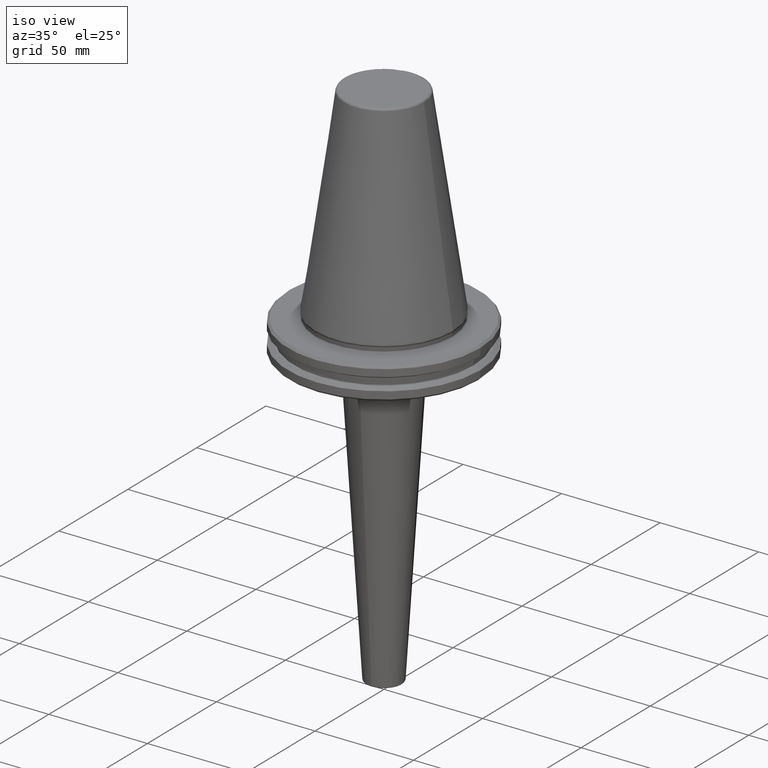
[diagram: clean part render]
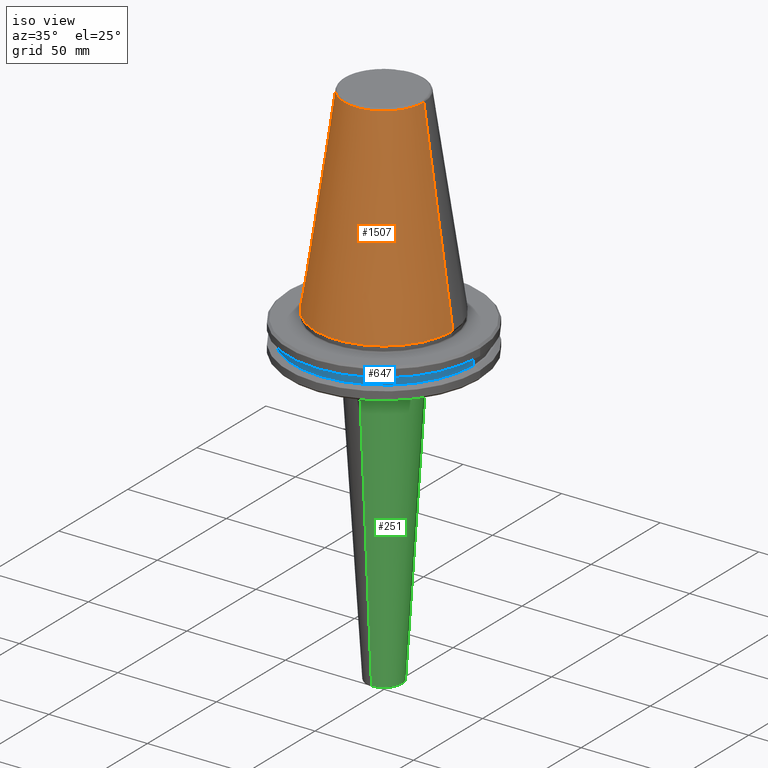
[diagram: same view with three faces highlighted in distinct colors, each labeled with its STEP entity id]
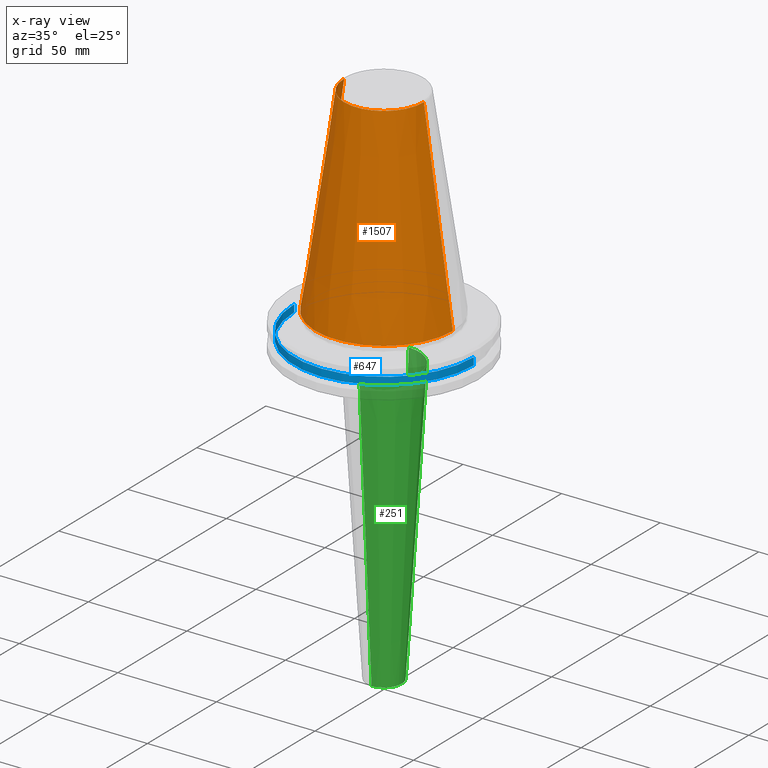
[diagram: x-ray of the same camera — body ghosted, the three highlighted faces saturated]
A machine part, iso view with three faces highlighted in distinct colors.
The next image is the same camera in x-ray (body ghosted, the three faces saturated) — at least one of them is partly hidden behind the body in this view.
Their STEP definitions:

[orange] entity #1507 — the highlighted conical surface has half-angle 8.297 deg.
#12 = AXIS2_PLACEMENT_3D ( 'NONE', #931, #621, #210 ) ;
#136 = AXIS2_PLACEMENT_3D ( 'NONE', #587, #584, #579 ) ;
#143 = VERTEX_POINT ( 'NONE', #955 ) ;
#148 = AXIS2_PLACEMENT_3D ( 'NONE', #350, #339, #209 ) ;
#166 = VERTEX_POINT ( 'NONE', #1245 ) ;
#209 = DIRECTION ( 'NONE',  ( -1.000000000000000000, 0.0000000000000000000, 0.0000000000000000000 ) ) ;
#210 = DIRECTION ( 'NONE',  ( -1.000000000000000000, 0.0000000000000000000, 0.0000000000000000000 ) ) ;
#323 = CIRCLE ( 'NONE', #148, 34.92499999999999700 ) ;
#339 = DIRECTION ( 'NONE',  ( -0.0000000000000000000, -0.0000000000000000000, 1.000000000000000000 ) ) ;
#350 = CARTESIAN_POINT ( 'NONE',  ( 0.0000000000000000000, 0.0000000000000000000, 0.0000000000000000000 ) ) ;
#370 = VERTEX_POINT ( 'NONE', #1297 ) ;
#391 = VERTEX_POINT ( 'NONE', #1547 ) ;
#488 = EDGE_CURVE ( 'NONE', #143, #391, #1359, .T. ) ;
#531 = EDGE_CURVE ( 'NONE', #166, #370, #1169, .T. ) ;
#579 = DIRECTION ( 'NONE',  ( -1.000000000000000000, 0.0000000000000000000, 0.0000000000000000000 ) ) ;
#584 = DIRECTION ( 'NONE',  ( 0.0000000000000000000, 0.0000000000000000000, -1.000000000000000000 ) ) ;
#587 = CARTESIAN_POINT ( 'NONE',  ( 0.0000000000000000000, 0.0000000000000000000, 100.8943082272673000 ) ) ;
#621 = DIRECTION ( 'NONE',  ( 0.0000000000000000000, 0.0000000000000000000, -1.000000000000000000 ) ) ;
#760 = FACE_OUTER_BOUND ( 'NONE', #920, .T. ) ;
#787 = ORIENTED_EDGE ( 'NONE', *, *, #531, .T. ) ;
#920 = EDGE_LOOP ( 'NONE', ( #1276, #1016, #787, #990 ) ) ;
#931 = CARTESIAN_POINT ( 'NONE',  ( 0.0000000000000000000, 0.0000000000000000000, -1.387778780781445700E-014 ) ) ;
#955 = CARTESIAN_POINT ( 'NONE',  ( 20.21110778703758000, 3.376112895941951000E-015, 100.8943082272673000 ) ) ;
#990 = ORIENTED_EDGE ( 'NONE', *, *, #1429, .T. ) ;
#1016 = ORIENTED_EDGE ( 'NONE', *, *, #1058, .T. ) ;
#1058 = EDGE_CURVE ( 'NONE', #143, #166, #1110, .T. ) ;
#1110 = CIRCLE ( 'NONE', #136, 20.21110778703758000 ) ;
#1169 = LINE ( 'NONE', #1308, #1307 ) ;
#1230 = DIRECTION ( 'NONE',  ( 0.1443082272673069400, 1.767266086135362400E-017, -0.9895327864921743500 ) ) ;
#1240 = DIRECTION ( 'NONE',  ( -0.1443082272673069400, 0.0000000000000000000, -0.9895327864921743500 ) ) ;
#1245 = CARTESIAN_POINT ( 'NONE',  ( -20.21110778703758000, 0.0000000000000000000, 100.8943082272673000 ) ) ;
#1268 = VECTOR ( 'NONE', #1230, 1000.000000000000000 ) ;
#1276 = ORIENTED_EDGE ( 'NONE', *, *, #488, .F. ) ;
#1297 = CARTESIAN_POINT ( 'NONE',  ( -34.92500000000000400, 4.277078946022131700E-015, 0.0000000000000000000 ) ) ;
#1301 = CONICAL_SURFACE ( 'NONE', #12, 34.92499999999999700, 0.1448138465474189400 ) ;
#1307 = VECTOR ( 'NONE', #1240, 1000.000000000000000 ) ;
#1308 = CARTESIAN_POINT ( 'NONE',  ( -34.92499999999999700, 0.0000000000000000000, -1.387778780781445700E-014 ) ) ;
#1359 = LINE ( 'NONE', #1557, #1268 ) ;
#1429 = EDGE_CURVE ( 'NONE', #370, #391, #323, .T. ) ;
#1507 = ADVANCED_FACE ( 'NONE', ( #760 ), #1301, .T. ) ;
#1547 = CARTESIAN_POINT ( 'NONE',  ( 34.92500000000000400, 0.0000000000000000000, 0.0000000000000000000 ) ) ;
#1557 = CARTESIAN_POINT ( 'NONE',  ( 34.92499999999999700, 4.277078946022130900E-015, -1.387778780781445700E-014 ) ) ;

[blue] entity #647 — the highlighted cylindrical surface (partial cylindrical patch) has radius 45.5 mm, axis along (0, 0, 1).
#14 = VERTEX_POINT ( 'NONE', #712 ) ;
#56 = ORIENTED_EDGE ( 'NONE', *, *, #943, .F. ) ;
#72 = EDGE_CURVE ( 'NONE', #427, #14, #202, .T. ) ;
#120 = DIRECTION ( 'NONE',  ( 0.0000000000000000000, 0.0000000000000000000, 1.000000000000000000 ) ) ;
#192 = LINE ( 'NONE', #1140, #1235 ) ;
#202 = LINE ( 'NONE', #1183, #269 ) ;
#267 = VERTEX_POINT ( 'NONE', #1105 ) ;
#269 = VECTOR ( 'NONE', #1157, 1000.000000000000000 ) ;
#301 = AXIS2_PLACEMENT_3D ( 'NONE', #1536, #1425, #1277 ) ;
#308 = VERTEX_POINT ( 'NONE', #1187 ) ;
#414 = CYLINDRICAL_SURFACE ( 'NONE', #1223, 45.50000000000000000 ) ;
#427 = VERTEX_POINT ( 'NONE', #1168 ) ;
#480 = ORIENTED_EDGE ( 'NONE', *, *, #1269, .T. ) ;
#550 = ORIENTED_EDGE ( 'NONE', *, *, #659, .T. ) ;
#647 = ADVANCED_FACE ( 'NONE', ( #1544 ), #414, .T. ) ;
#659 = EDGE_CURVE ( 'NONE', #427, #308, #1408, .T. ) ;
#712 = CARTESIAN_POINT ( 'NONE',  ( -45.50000000000032700, 5.572142936120496600E-015, -9.224999999999926800 ) ) ;
#754 = DIRECTION ( 'NONE',  ( 1.000000000000000000, 0.0000000000000000000, 0.0000000000000000000 ) ) ;
#756 = DIRECTION ( 'NONE',  ( -0.0000000000000000000, -0.0000000000000000000, 1.000000000000000000 ) ) ;
#757 = CARTESIAN_POINT ( 'NONE',  ( 0.0000000000000000000, 0.0000000000000000000, -9.224999999999926800 ) ) ;
#819 = ORIENTED_EDGE ( 'NONE', *, *, #72, .F. ) ;
#943 = EDGE_CURVE ( 'NONE', #14, #267, #1471, .T. ) ;
#1098 = DIRECTION ( 'NONE',  ( 0.0000000000000000000, 0.0000000000000000000, 1.000000000000000000 ) ) ;
#1105 = CARTESIAN_POINT ( 'NONE',  ( 45.50000000000032000, 0.0000000000000000000, -9.224999999999926800 ) ) ;
#1112 = AXIS2_PLACEMENT_3D ( 'NONE', #757, #756, #754 ) ;
#1139 = DIRECTION ( 'NONE',  ( 1.000000000000000000, 0.0000000000000000000, 0.0000000000000000000 ) ) ;
#1140 = CARTESIAN_POINT ( 'NONE',  ( 45.50000000000000000, 0.0000000000000000000, 113.5216080541959500 ) ) ;
#1157 = DIRECTION ( 'NONE',  ( 0.0000000000000000000, 0.0000000000000000000, 1.000000000000000000 ) ) ;
#1168 = CARTESIAN_POINT ( 'NONE',  ( -45.50000000000032700, 5.572142936120496600E-015, -12.97500000000006900 ) ) ;
#1183 = CARTESIAN_POINT ( 'NONE',  ( -45.50000000000000000, 5.572142936120457100E-015, 113.5216080541959500 ) ) ;
#1187 = CARTESIAN_POINT ( 'NONE',  ( 45.50000000000032000, 0.0000000000000000000, -12.97500000000006900 ) ) ;
#1223 = AXIS2_PLACEMENT_3D ( 'NONE', #1412, #1098, #1139 ) ;
#1235 = VECTOR ( 'NONE', #120, 1000.000000000000000 ) ;
#1269 = EDGE_CURVE ( 'NONE', #308, #267, #192, .T. ) ;
#1277 = DIRECTION ( 'NONE',  ( 1.000000000000000000, 0.0000000000000000000, 0.0000000000000000000 ) ) ;
#1395 = EDGE_LOOP ( 'NONE', ( #819, #550, #480, #56 ) ) ;
#1408 = CIRCLE ( 'NONE', #301, 45.50000000000032000 ) ;
#1412 = CARTESIAN_POINT ( 'NONE',  ( 0.0000000000000000000, 0.0000000000000000000, 113.5216080541959500 ) ) ;
#1425 = DIRECTION ( 'NONE',  ( -0.0000000000000000000, -0.0000000000000000000, 1.000000000000000000 ) ) ;
#1471 = CIRCLE ( 'NONE', #1112, 45.50000000000032000 ) ;
#1536 = CARTESIAN_POINT ( 'NONE',  ( 0.0000000000000000000, 0.0000000000000000000, -12.97500000000006900 ) ) ;
#1544 = FACE_OUTER_BOUND ( 'NONE', #1395, .T. ) ;

[green] entity #251 — the highlighted conical surface has half-angle 3.529 deg.
#2 = CARTESIAN_POINT ( 'NONE',  ( 0.0000000000000000000, 0.0000000000000000000, -168.6307748738545100 ) ) ;
#58 = CIRCLE ( 'NONE', #1136, 17.96064450554360500 ) ;
#63 = VERTEX_POINT ( 'NONE', #1027 ) ;
#206 = ORIENTED_EDGE ( 'NONE', *, *, #1009, .T. ) ;
#251 = ADVANCED_FACE ( 'NONE', ( #539 ), #923, .T. ) ;
#265 = LINE ( 'NONE', #742, #803 ) ;
#358 = ORIENTED_EDGE ( 'NONE', *, *, #1121, .T. ) ;
#374 = LINE ( 'NONE', #1055, #743 ) ;
#392 = DIRECTION ( 'NONE',  ( 0.0000000000000000000, 0.0000000000000000000, -1.000000000000000000 ) ) ;
#398 = ORIENTED_EDGE ( 'NONE', *, *, #1303, .T. ) ;
#419 = AXIS2_PLACEMENT_3D ( 'NONE', #2, #759, #1261 ) ;
#444 = VERTEX_POINT ( 'NONE', #1379 ) ;
#498 = AXIS2_PLACEMENT_3D ( 'NONE', #1184, #937, #1109 ) ;
#523 = AXIS2_PLACEMENT_3D ( 'NONE', #643, #641, #639 ) ;
#539 = FACE_OUTER_BOUND ( 'NONE', #1287, .T. ) ;
#615 = CARTESIAN_POINT ( 'NONE',  ( 0.0000000000000000000, 0.0000000000000000000, -23.79225126145506100 ) ) ;
#618 = DIRECTION ( 'NONE',  ( -1.000000000000000000, 0.0000000000000000000, 0.0000000000000000000 ) ) ;
#627 = DIRECTION ( 'NONE',  ( 0.0000000000000000000, 0.0000000000000000000, -1.000000000000000000 ) ) ;
#635 = CARTESIAN_POINT ( 'NONE',  ( 0.0000000000000000000, 0.0000000000000000000, -23.79225126145506100 ) ) ;
#639 = DIRECTION ( 'NONE',  ( 1.000000000000000000, 0.0000000000000000000, 0.0000000000000000000 ) ) ;
#641 = DIRECTION ( 'NONE',  ( 0.0000000000000000000, 0.0000000000000000000, 1.000000000000000000 ) ) ;
#643 = CARTESIAN_POINT ( 'NONE',  ( 0.0000000000000000000, 0.0000000000000000000, -168.6307748738545100 ) ) ;
#649 = CARTESIAN_POINT ( 'NONE',  ( 17.96064450554360500, 2.505125802812696300E-015, -23.79225126145506100 ) ) ;
#667 = DIRECTION ( 'NONE',  ( 7.537670152014071500E-018, 0.06154974770898907100, 0.9981040169025269200 ) ) ;
#670 = CARTESIAN_POINT ( 'NONE',  ( 0.0000000000000000000, -9.028935549445636300, -168.6307748738545100 ) ) ;
#671 = ORIENTED_EDGE ( 'NONE', *, *, #1143, .F. ) ;
#742 = CARTESIAN_POINT ( 'NONE',  ( 2.199544580433747500E-015, 17.96064450554360500, -23.79225126145506800 ) ) ;
#743 = VECTOR ( 'NONE', #1423, 1000.000000000000000 ) ;
#744 = CARTESIAN_POINT ( 'NONE',  ( 1.652635141233689800E-015, 9.028935549445638000, -168.6307748738545100 ) ) ;
#759 = DIRECTION ( 'NONE',  ( 0.0000000000000000000, 0.0000000000000000000, 1.000000000000000000 ) ) ;
#803 = VECTOR ( 'NONE', #667, 1000.000000000000000 ) ;
#861 = ORIENTED_EDGE ( 'NONE', *, *, #1035, .T. ) ;
#892 = CARTESIAN_POINT ( 'NONE',  ( 9.028935549445636300, 1.105725702033634800E-015, -168.6307748738545100 ) ) ;
#915 = CIRCLE ( 'NONE', #1376, 17.96064450554360500 ) ;
#923 = CONICAL_SURFACE ( 'NONE', #498, 17.96064450554360500, 0.06158867632756039700 ) ;
#937 = DIRECTION ( 'NONE',  ( 0.0000000000000000000, -9.658470081301257200E-017, 1.000000000000000000 ) ) ;
#968 = VERTEX_POINT ( 'NONE', #744 ) ;
#1009 = EDGE_CURVE ( 'NONE', #968, #444, #265, .T. ) ;
#1027 = CARTESIAN_POINT ( 'NONE',  ( 0.0000000000000000000, -17.96064450554360500, -23.79225126145506100 ) ) ;
#1035 = EDGE_CURVE ( 'NONE', #1280, #968, #1508, .T. ) ;
#1039 = VERTEX_POINT ( 'NONE', #649 ) ;
#1055 = CARTESIAN_POINT ( 'NONE',  ( 0.0000000000000000000, -17.96064450554360500, -23.79225126145507500 ) ) ;
#1109 = DIRECTION ( 'NONE',  ( 0.0000000000000000000, -1.000000000000000000, -1.931694016260251200E-016 ) ) ;
#1121 = EDGE_CURVE ( 'NONE', #1319, #1280, #1345, .T. ) ;
#1136 = AXIS2_PLACEMENT_3D ( 'NONE', #615, #392, #1197 ) ;
#1143 = EDGE_CURVE ( 'NONE', #1319, #63, #374, .T. ) ;
#1161 = EDGE_CURVE ( 'NONE', #444, #1039, #58, .T. ) ;
#1184 = CARTESIAN_POINT ( 'NONE',  ( 0.0000000000000000000, 0.0000000000000000000, -23.79225126145507100 ) ) ;
#1197 = DIRECTION ( 'NONE',  ( -1.000000000000000000, 0.0000000000000000000, 0.0000000000000000000 ) ) ;
#1261 = DIRECTION ( 'NONE',  ( 1.000000000000000000, 0.0000000000000000000, 0.0000000000000000000 ) ) ;
#1280 = VERTEX_POINT ( 'NONE', #892 ) ;
#1287 = EDGE_LOOP ( 'NONE', ( #358, #861, #206, #1357, #398, #671 ) ) ;
#1303 = EDGE_CURVE ( 'NONE', #1039, #63, #915, .T. ) ;
#1319 = VERTEX_POINT ( 'NONE', #670 ) ;
#1345 = CIRCLE ( 'NONE', #419, 9.028935549445638000 ) ;
#1357 = ORIENTED_EDGE ( 'NONE', *, *, #1161, .T. ) ;
#1376 = AXIS2_PLACEMENT_3D ( 'NONE', #635, #627, #618 ) ;
#1379 = CARTESIAN_POINT ( 'NONE',  ( 2.199544580433747500E-015, 17.96064450554360500, -23.79225126145506100 ) ) ;
#1423 = DIRECTION ( 'NONE',  ( 0.0000000000000000000, -0.06154974770898926500, 0.9981040169025269200 ) ) ;
#1508 = CIRCLE ( 'NONE', #523, 9.028935549445638000 ) ;